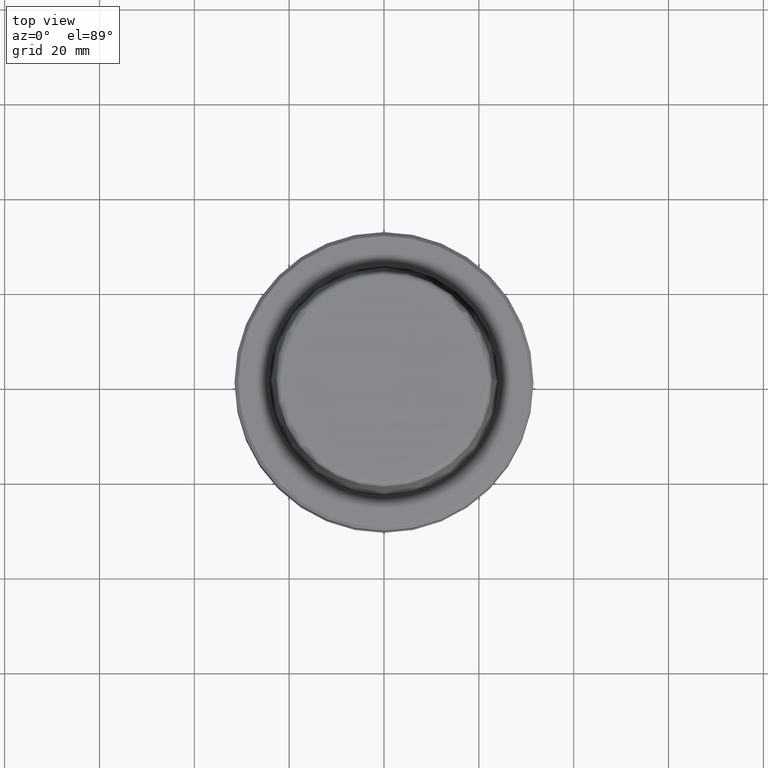
[diagram: clean part render]
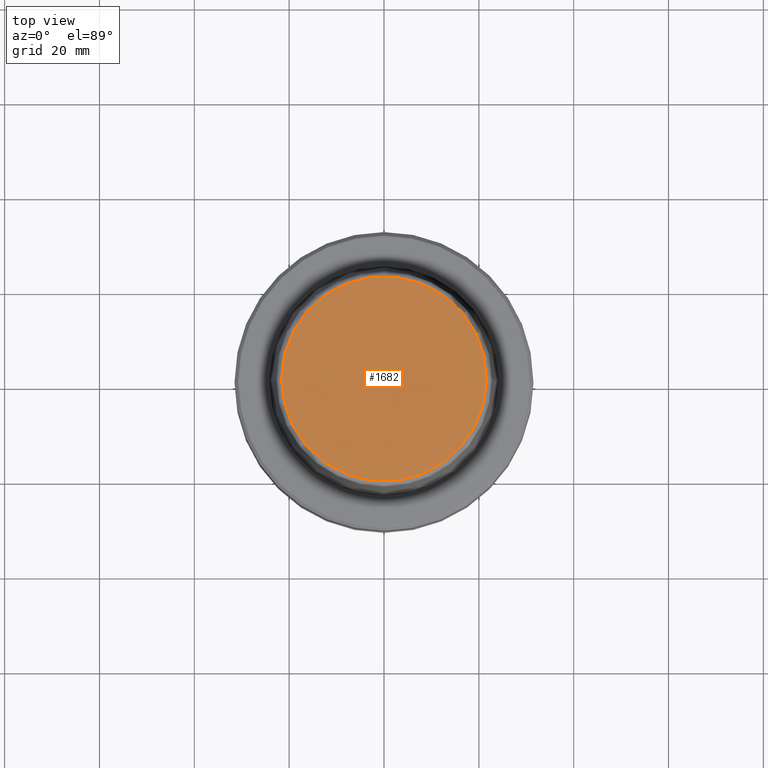
[diagram: same view with one face highlighted and labeled with its STEP entity id]
A machine part, top view. The second image highlights one B-rep face of the part: STEP entity #1682.
In plain terms, the highlighted planar face has unit normal (0, 0, -1).
Its self-contained STEP definition (entity closure, byte-faithful):
#10 = VERTEX_POINT ( 'NONE', #1419 ) ;
#51 = CARTESIAN_POINT ( 'NONE',  ( 21.58108272732117100, 0.0000000000000000000, 31.89999999999999900 ) ) ;
#55 = AXIS2_PLACEMENT_3D ( 'NONE', #800, #2040, #487 ) ;
#92 = DIRECTION ( 'NONE',  ( 1.000000000000000000, 0.0000000000000000000, 0.0000000000000000000 ) ) ;
#294 = DIRECTION ( 'NONE',  ( 0.0000000000000000000, 0.0000000000000000000, -1.000000000000000000 ) ) ;
#309 = CIRCLE ( 'NONE', #55, 21.58108272732117100 ) ;
#334 = EDGE_LOOP ( 'NONE', ( #1846, #1839 ) ) ;
#361 = EDGE_CURVE ( 'NONE', #10, #408, #872, .T. ) ;
#408 = VERTEX_POINT ( 'NONE', #51 ) ;
#487 = DIRECTION ( 'NONE',  ( 1.000000000000000000, 0.0000000000000000000, 0.0000000000000000000 ) ) ;
#584 = CARTESIAN_POINT ( 'NONE',  ( 0.0000000000000000000, 0.0000000000000000000, 31.89999999999999900 ) ) ;
#604 = EDGE_CURVE ( 'NONE', #408, #10, #309, .T. ) ;
#800 = CARTESIAN_POINT ( 'NONE',  ( 0.0000000000000000000, 0.0000000000000000000, 31.89999999999999900 ) ) ;
#872 = CIRCLE ( 'NONE', #986, 21.58108272732117100 ) ;
#986 = AXIS2_PLACEMENT_3D ( 'NONE', #584, #1055, #92 ) ;
#1055 = DIRECTION ( 'NONE',  ( -0.0000000000000000000, -0.0000000000000000000, 1.000000000000000000 ) ) ;
#1068 = PLANE ( 'NONE',  #1454 ) ;
#1225 = CARTESIAN_POINT ( 'NONE',  ( 0.0000000000000000000, 0.0000000000000000000, 31.89999999999999900 ) ) ;
#1383 = DIRECTION ( 'NONE',  ( -1.000000000000000000, 0.0000000000000000000, -0.0000000000000000000 ) ) ;
#1419 = CARTESIAN_POINT ( 'NONE',  ( -21.58108272732117100, 2.716307157494421400E-015, 31.89999999999999900 ) ) ;
#1454 = AXIS2_PLACEMENT_3D ( 'NONE', #1225, #294, #1383 ) ;
#1460 = FACE_OUTER_BOUND ( 'NONE', #334, .T. ) ;
#1682 = ADVANCED_FACE ( 'NONE', ( #1460 ), #1068, .F. ) ;
#1839 = ORIENTED_EDGE ( 'NONE', *, *, #361, .T. ) ;
#1846 = ORIENTED_EDGE ( 'NONE', *, *, #604, .T. ) ;
#2040 = DIRECTION ( 'NONE',  ( -0.0000000000000000000, -0.0000000000000000000, 1.000000000000000000 ) ) ;